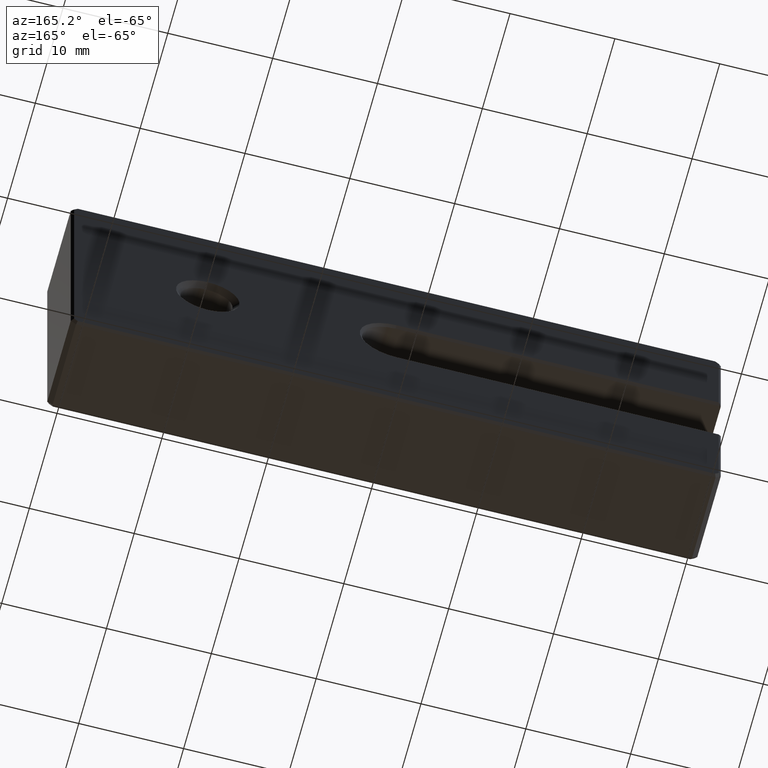
[diagram: clean part render]
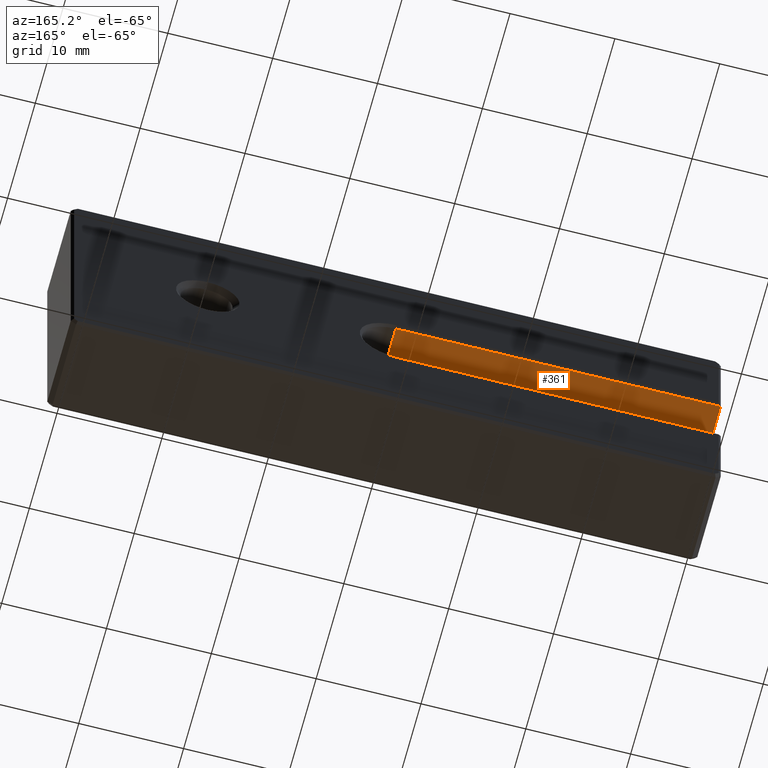
[diagram: same view with one face highlighted and labeled with its STEP entity id]
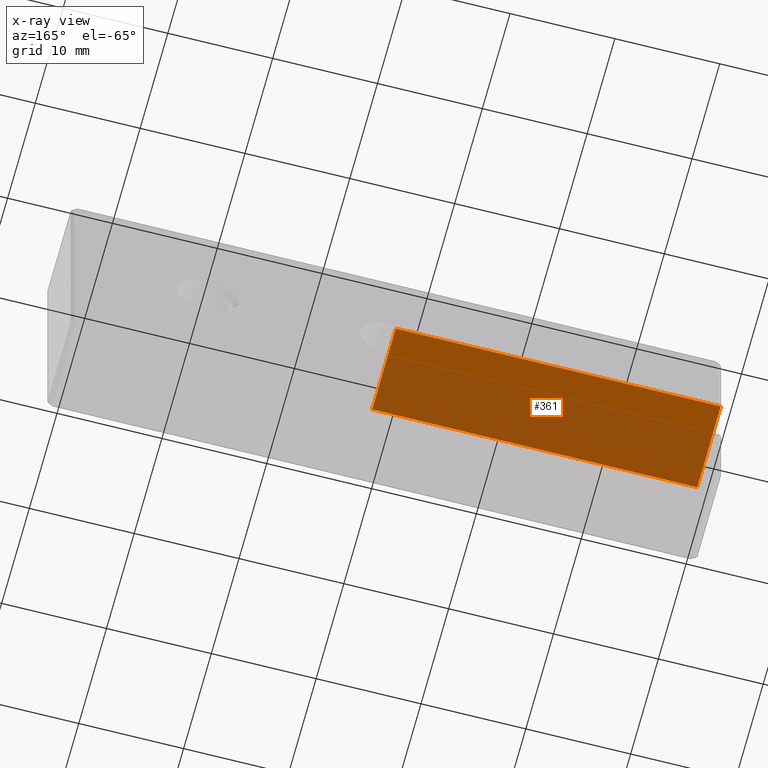
[diagram: x-ray of the same camera — body ghosted, the highlighted face saturated]
A machine part, auxiliary view. The second image highlights one B-rep face of the part: STEP entity #361.
The next image is the same camera in x-ray: the body ghosted, the highlighted face saturated — about 67% of this face is hidden behind the body in this view.
In plain terms, the highlighted planar face has unit normal (0, 0, 1).
Its self-contained STEP definition (entity closure, byte-faithful):
#7 = VECTOR ( 'NONE', #88, 1000.000000000000000 ) ;
#16 = DIRECTION ( 'NONE',  ( 0.000000000000000000, -1.000000000000000000, 0.000000000000000000 ) ) ;
#75 = ORIENTED_EDGE ( 'NONE', *, *, #594, .T. ) ;
#88 = DIRECTION ( 'NONE',  ( 1.000000000000000000, 0.000000000000000000, -5.595882180570342961E-17 ) ) ;
#141 = DIRECTION ( 'NONE',  ( 1.000000000000000000, 0.000000000000000000, -5.595882180570342961E-17 ) ) ;
#152 = LINE ( 'NONE', #935, #257 ) ;
#185 = LINE ( 'NONE', #620, #761 ) ;
#194 = VERTEX_POINT ( 'NONE', #525 ) ;
#235 = PLANE ( 'NONE',  #308 ) ;
#237 = DIRECTION ( 'NONE',  ( -1.000000000000000000, 0.000000000000000000, 5.595882180570342961E-17 ) ) ;
#257 = VECTOR ( 'NONE', #237, 1000.000000000000000 ) ;
#308 = AXIS2_PLACEMENT_3D ( 'NONE', #1008, #477, #141 ) ;
#361 = ADVANCED_FACE ( 'NONE', ( #920 ), #235, .F. ) ;
#400 = VERTEX_POINT ( 'NONE', #412 ) ;
#412 = CARTESIAN_POINT ( 'NONE',  ( -31.00000000000000355, 8.749999999999998224, 3.250000000000004441 ) ) ;
#477 = DIRECTION ( 'NONE',  ( 5.595882180570342961E-17, 0.000000000000000000, 1.000000000000000000 ) ) ;
#518 = VECTOR ( 'NONE', #606, 1000.000000000000000 ) ;
#524 = CARTESIAN_POINT ( 'NONE',  ( 0.000000000000000000, -12.00000000000000533, 3.250000000000000000 ) ) ;
#525 = CARTESIAN_POINT ( 'NONE',  ( 0.000000000000000000, 8.749999999999998224, 3.250000000000000000 ) ) ;
#539 = LINE ( 'NONE', #524, #518 ) ;
#544 = CARTESIAN_POINT ( 'NONE',  ( 0.000000000000000000, 8.749999999999998224, 3.250000000000000000 ) ) ;
#594 = EDGE_CURVE ( 'NONE', #400, #194, #693, .T. ) ;
#600 = EDGE_CURVE ( 'NONE', #1106, #194, #539, .T. ) ;
#606 = DIRECTION ( 'NONE',  ( -0.000000000000000000, 1.000000000000000000, -0.000000000000000000 ) ) ;
#620 = CARTESIAN_POINT ( 'NONE',  ( -31.00000000000000355, 9.000000000000000000, 3.250000000000004441 ) ) ;
#693 = LINE ( 'NONE', #544, #7 ) ;
#708 = ORIENTED_EDGE ( 'NONE', *, *, #1023, .F. ) ;
#723 = CARTESIAN_POINT ( 'NONE',  ( -31.00000000000000355, 0.2499999999999932832, 3.250000000000004441 ) ) ;
#761 = VECTOR ( 'NONE', #16, 1000.000000000000000 ) ;
#783 = VERTEX_POINT ( 'NONE', #723 ) ;
#808 = ORIENTED_EDGE ( 'NONE', *, *, #600, .F. ) ;
#835 = ORIENTED_EDGE ( 'NONE', *, *, #869, .T. ) ;
#869 = EDGE_CURVE ( 'NONE', #1106, #783, #152, .T. ) ;
#920 = FACE_OUTER_BOUND ( 'NONE', #990, .T. ) ;
#935 = CARTESIAN_POINT ( 'NONE',  ( -62.00000000000001421, 0.2499999999999932832, 3.250000000000003109 ) ) ;
#990 = EDGE_LOOP ( 'NONE', ( #808, #835, #708, #75 ) ) ;
#1008 = CARTESIAN_POINT ( 'NONE',  ( -62.00000000000001421, -12.00000000000000533, 3.250000000000003109 ) ) ;
#1023 = EDGE_CURVE ( 'NONE', #400, #783, #185, .T. ) ;
#1082 = CARTESIAN_POINT ( 'NONE',  ( 0.000000000000000000, 0.2499999999999932832, 3.250000000000000000 ) ) ;
#1106 = VERTEX_POINT ( 'NONE', #1082 ) ;